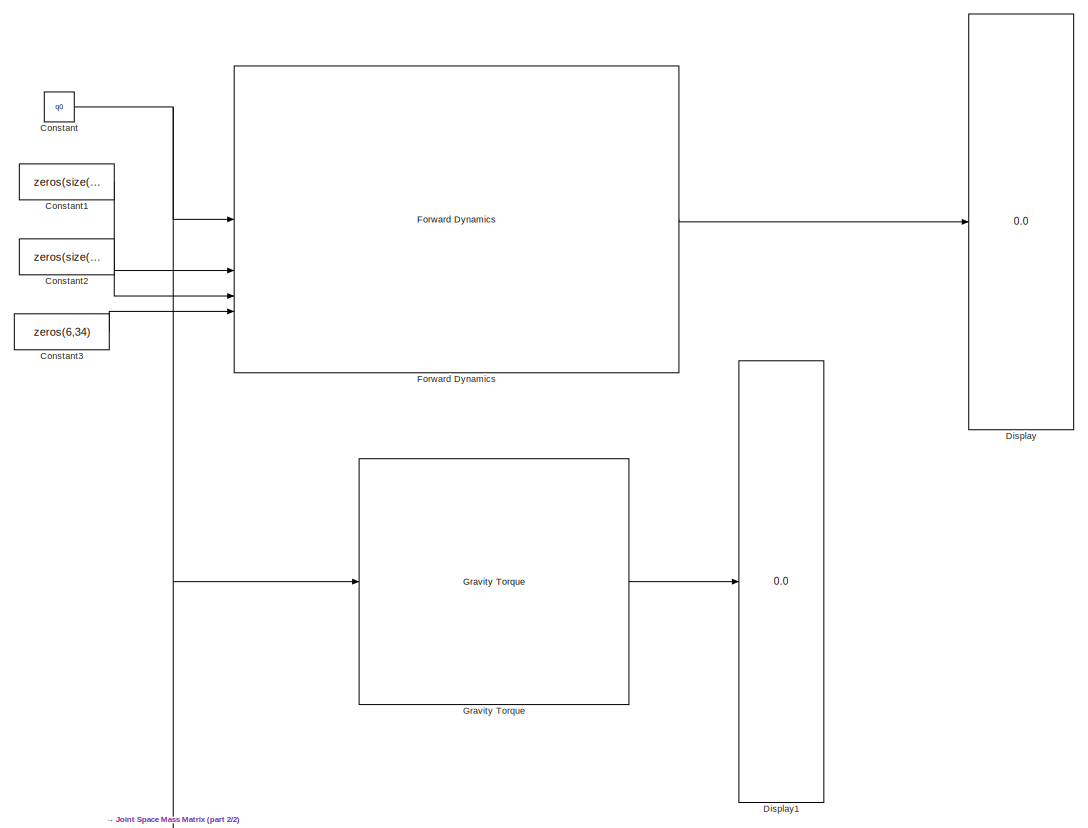
[diagram: root canvas - part 1/2, central region]
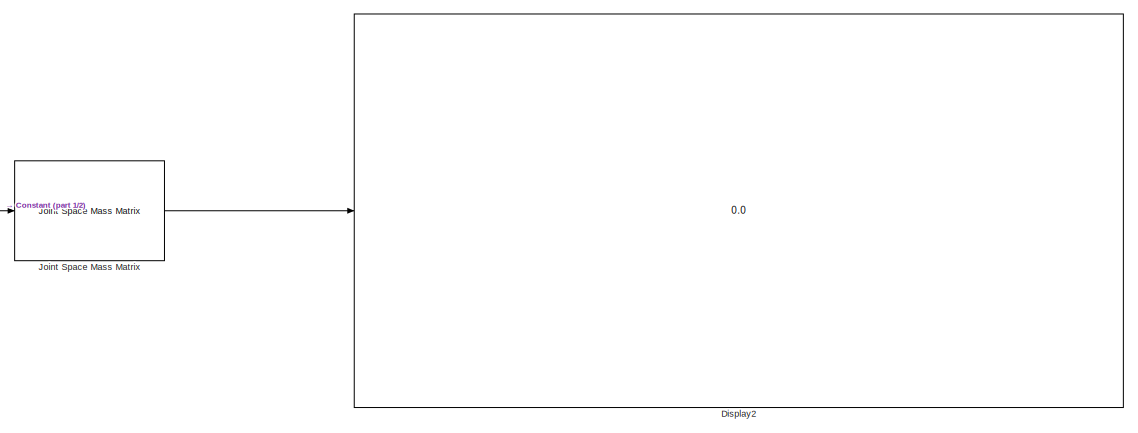
[diagram: root canvas - part 2/2, full width, bottom band]
MODEL slx_8b5990b8ff59
KIND model
CONFIG AbsTol = auto
CONFIG EnableMultiTasking = off
CONFIG FixedStep = auto
CONFIG MaxStep = auto
CONFIG MinStep = auto
CONFIG RelTol = 1e-3
CONFIG SampleTimeConstraint = Unconstrained
CONFIG SolverName = VariableStepAuto
CONFIG StartTime = 0.0
CONFIG StopTime = 10.0
BLOCK [Constant] Constant
  Value = q0
BLOCK [Constant] Constant1
  Value = zeros(size(q0))
BLOCK [Constant] Constant2
  Value = zeros(size(q0))
BLOCK [Constant] Constant3
  Value = zeros(6,34)
BLOCK [Display] Display
  Decimation = 1
BLOCK [Display] Display1
  Decimation = 1
BLOCK [Display] Display2
  Decimation = 1
BLOCK [Reference] Forward Dynamics  REF=robotmaniplib/Forward Dynamics
  SourceBlock = robotmaniplib/Forward Dynamics
  SourceType = Forward Dynamics
BLOCK [Reference] Gravity Torque  REF=robotmaniplib/Gravity Torque
  SourceBlock = robotmaniplib/Gravity Torque
  SourceType = Gravity Torque
BLOCK [Reference] Joint Space Mass Matrix  REF=robotmaniplib/Joint Space Mass Matrix
  SourceBlock = robotmaniplib/Joint Space Mass Matrix
  SourceType = Joint Space Mass Matrix
LINE Constant1:1 -> Forward Dynamics:2
LINE Constant2:1 -> Forward Dynamics:3
LINE Constant3:1 -> Forward Dynamics:4
NET Constant:1 -> Forward Dynamics:1, Gravity Torque:1, Joint Space Mass Matrix:1
LINE Forward Dynamics:1 -> Display:1
LINE Gravity Torque:1 -> Display1:1
LINE Joint Space Mass Matrix:1 -> Display2:1
note: NET lines group one-source signal fan-out (src -> all destinations, sorted); 1:1 wires keep LINE
